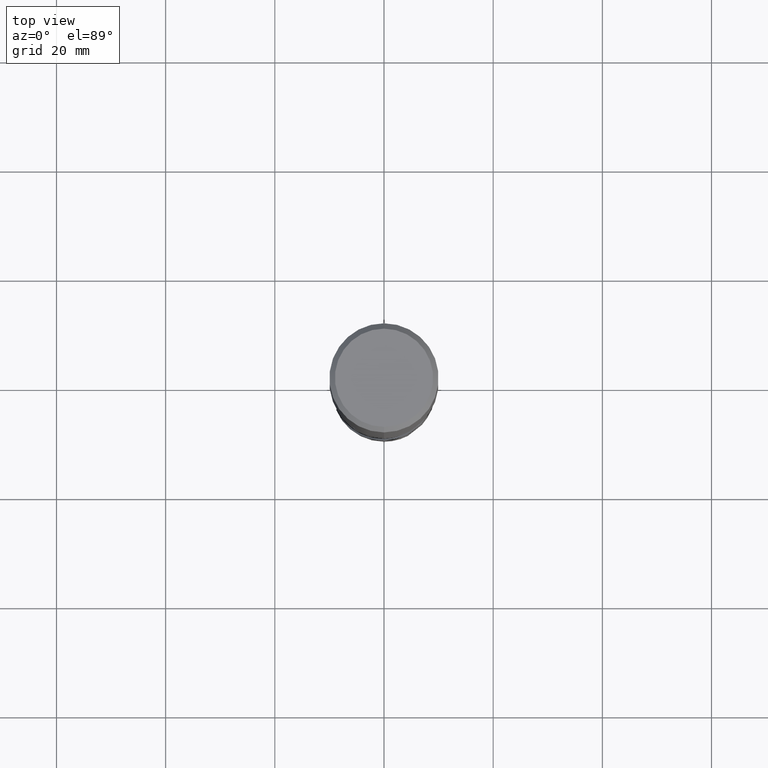
[diagram: clean part render]
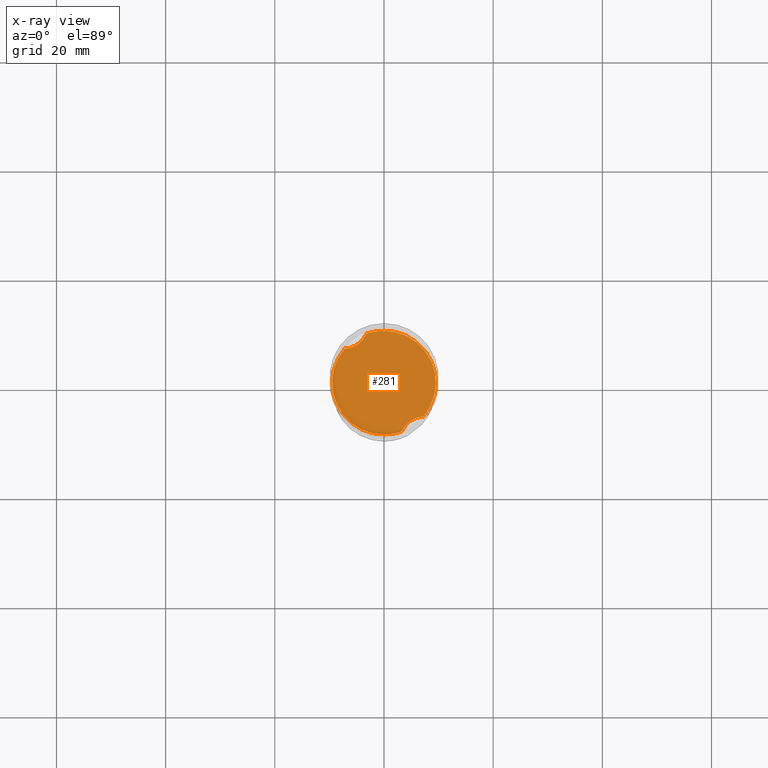
[diagram: x-ray — body ghosted, one internal face saturated and labeled with its STEP entity id]
A machine part, top view, then the same camera in x-ray: the body is ghosted and one INTERNAL B-rep face — a face not visible from any outside direction — is saturated and labeled: STEP entity #281.
In plain terms, the highlighted planar face has unit normal (-0, 0, 1).
Its self-contained STEP definition (entity closure, byte-faithful):
#281=ADVANCED_FACE('',(#788),#789,.T.);
#353=VERTEX_POINT('',#869);
#435=VERTEX_POINT('',#960);
#441=VERTEX_POINT('',#966);
#503=VERTEX_POINT('',#1033);
#521=VERTEX_POINT('',#1053);
#541=EDGE_CURVE('',#435,#643,#1077,.T.);
#583=EDGE_CURVE('',#441,#353,#1124,.T.);
#627=EDGE_CURVE('',#503,#435,#1170,.T.);
#643=VERTEX_POINT('',#1188);
#729=EDGE_CURVE('',#353,#521,#1281,.T.);
#743=EDGE_CURVE('',#441,#643,#1295,.T.);
#763=EDGE_CURVE('',#503,#521,#1316,.T.);
#788=FACE_OUTER_BOUND('',#1333,.T.);
#789=PLANE('',#1334);
#869=CARTESIAN_POINT('',(-1.16175341552629E-015,9.4999,-52.0));
#960=CARTESIAN_POINT('',(1.16175341717508E-015,-9.4999,-52.0));
#966=CARTESIAN_POINT('',(-3.23174414702129,8.93330452734001,-52.0));
#1033=CARTESIAN_POINT('',(3.2317441470213,-8.93330452734001,-52.0));
#1053=CARTESIAN_POINT('',(7.20054291939289,-6.19679608152317,-52.0));
#1077=CIRCLE('',#4386,9.4999);
#1124=CIRCLE('',#4788,9.4999);
#1170=CIRCLE('',#5130,9.4999);
#1188=CARTESIAN_POINT('',(-7.20054291939288,6.19679608152318,-52.0));
#1281=CIRCLE('',#5485,9.4999);
#1295=B_SPLINE_CURVE_WITH_KNOTS('',3,(#5524,#5525,#5526,#5527,#5528,#5529,#5530,#5531,#5532,#5533),.UNSPECIFIED.,.F.,.F.,(4,2,2,2,4),(0.0,2.05612661392683,3.93963223239008,5.84503735340155,8.14812330683756),.UNSPECIFIED.);
#1316=B_SPLINE_CURVE_WITH_KNOTS('',3,(#5632,#5633,#5634,#5635,#5636,#5637,#5638,#5639,#5640,#5641),.UNSPECIFIED.,.F.,.F.,(4,2,2,2,4),(0.0,2.05612661392684,3.93963223239013,5.84503735340166,8.14812330683775),.UNSPECIFIED.);
#1333=EDGE_LOOP('',(#5644,#5645,#5646,#5647,#5648,#5649));
#1334=AXIS2_PLACEMENT_3D('',#5650,#5651,#5652);
#4386=AXIS2_PLACEMENT_3D('',#5999,#6000,#6001);
#4788=AXIS2_PLACEMENT_3D('',#6056,#6057,#6058);
#5130=AXIS2_PLACEMENT_3D('',#6092,#6093,#6094);
#5485=AXIS2_PLACEMENT_3D('',#6220,#6221,#6222);
#5524=CARTESIAN_POINT('',(-2.97815791796028,9.5499,-52.0));
#5525=CARTESIAN_POINT('',(-3.20027936383605,8.90151609262921,-52.0));
#5526=CARTESIAN_POINT('',(-3.53643710712786,8.30322200738403,-51.9999999999756));
#5527=CARTESIAN_POINT('',(-4.40553351987836,7.32248969830667,-51.9999999999756));
#5528=CARTESIAN_POINT('',(-4.90457712345643,6.94358507102092,-52.0000000000014));
#5529=CARTESIAN_POINT('',(-6.03831829109807,6.39431097347378,-52.0000000000014));
#5530=CARTESIAN_POINT('',(-6.65428851364417,6.23607577066581,-52.0000000000002));
#5531=CARTESIAN_POINT('',(-8.05151862850407,6.1338009083245,-52.0000000000002));
#5532=CARTESIAN_POINT('',(-8.81888846463704,6.24232004915086,-52.0));
#5533=CARTESIAN_POINT('',(-9.5499,6.48080029936932,-52.0));
#5632=CARTESIAN_POINT('',(2.97815791796027,-9.5499,-52.0));
#5633=CARTESIAN_POINT('',(3.20027936383605,-8.90151609262921,-52.0));
#5634=CARTESIAN_POINT('',(3.53643710712786,-8.30322200738403,-51.9999999999756));
#5635=CARTESIAN_POINT('',(4.40553351987837,-7.32248969830666,-51.9999999999756));
#5636=CARTESIAN_POINT('',(4.90457712345643,-6.94358507102092,-52.0000000000014));
#5637=CARTESIAN_POINT('',(6.03831829109808,-6.39431097347378,-52.0000000000014));
#5638=CARTESIAN_POINT('',(6.65428851364418,-6.23607577066581,-52.0000000000002));
#5639=CARTESIAN_POINT('',(8.05151862850407,-6.1338009083245,-52.0000000000002));
#5640=CARTESIAN_POINT('',(8.81888846463704,-6.24232004915087,-52.0));
#5641=CARTESIAN_POINT('',(9.5499,-6.48080029936932,-52.0));
#5644=ORIENTED_EDGE('',*,*,#763,.T.);
#5645=ORIENTED_EDGE('',*,*,#729,.F.);
#5646=ORIENTED_EDGE('',*,*,#583,.F.);
#5647=ORIENTED_EDGE('',*,*,#743,.T.);
#5648=ORIENTED_EDGE('',*,*,#541,.F.);
#5649=ORIENTED_EDGE('',*,*,#627,.F.);
#5650=CARTESIAN_POINT('',(0.0,4.74995,-52.0));
#5651=DIRECTION('',(-0.0,0.0,1.0));
#5652=DIRECTION('',(0.0,-1.0,0.0));
#5999=CARTESIAN_POINT('',(0.0,0.0,-52.0));
#6000=DIRECTION('',(0.0,0.0,-1.0));
#6001=DIRECTION('',(0.0,1.0,0.0));
#6056=CARTESIAN_POINT('',(0.0,0.0,-52.0));
#6057=DIRECTION('',(0.0,0.0,-1.0));
#6058=DIRECTION('',(0.0,1.0,0.0));
#6092=CARTESIAN_POINT('',(0.0,0.0,-52.0));
#6093=DIRECTION('',(0.0,0.0,-1.0));
#6094=DIRECTION('',(0.0,1.0,0.0));
#6220=CARTESIAN_POINT('',(0.0,0.0,-52.0));
#6221=DIRECTION('',(0.0,0.0,-1.0));
#6222=DIRECTION('',(0.0,1.0,0.0));